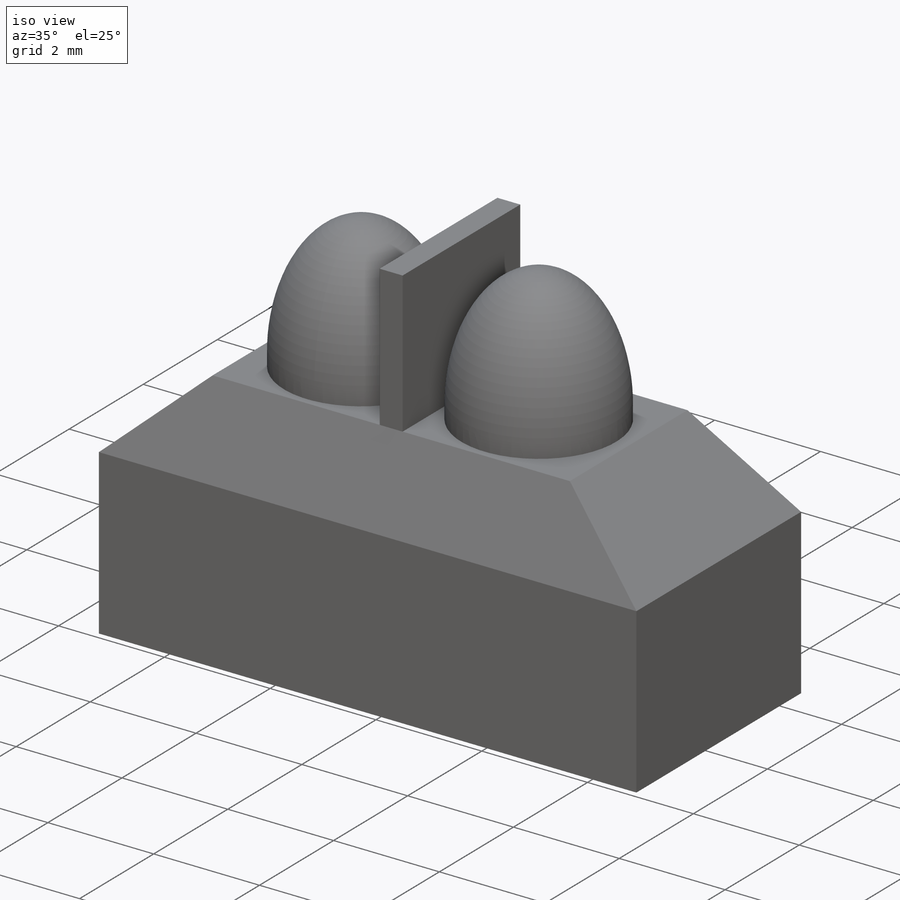
[diagram: iso view]
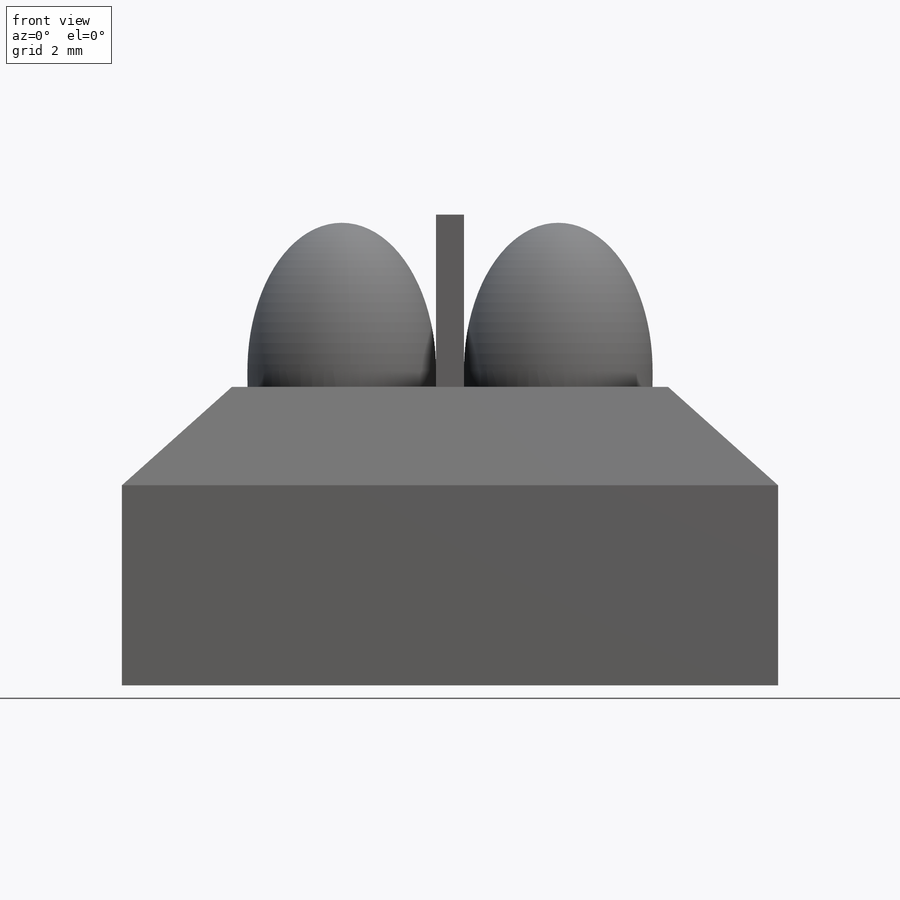
[diagram: front view]
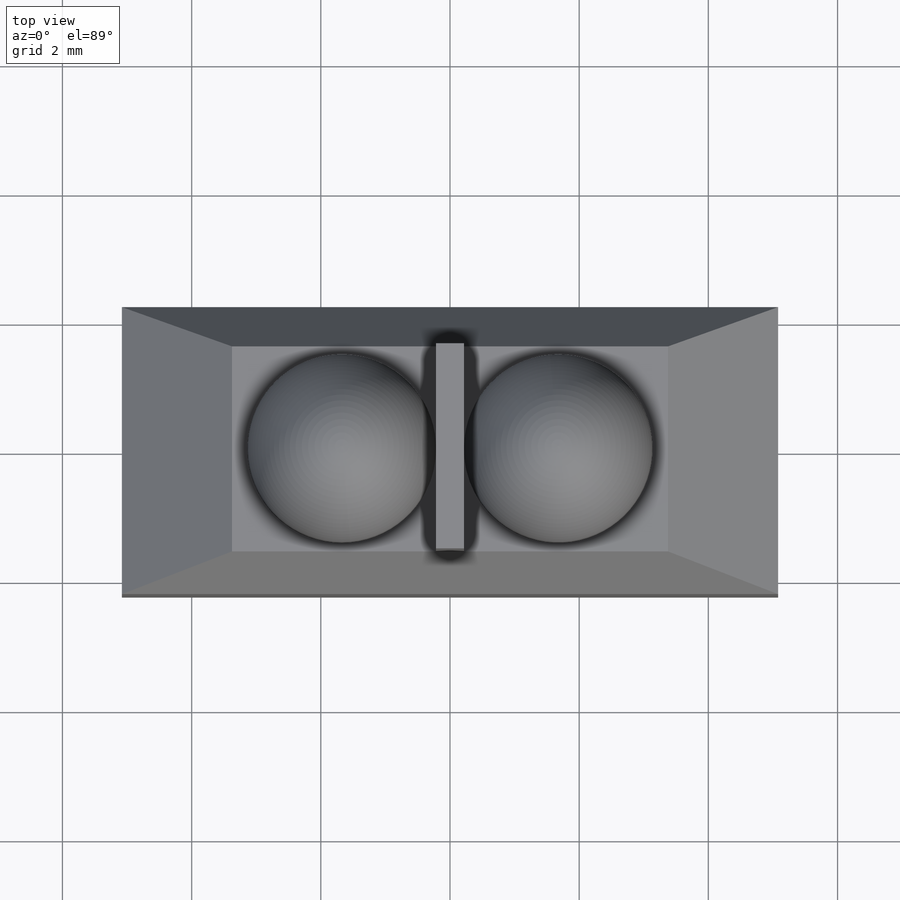
[diagram: top view]
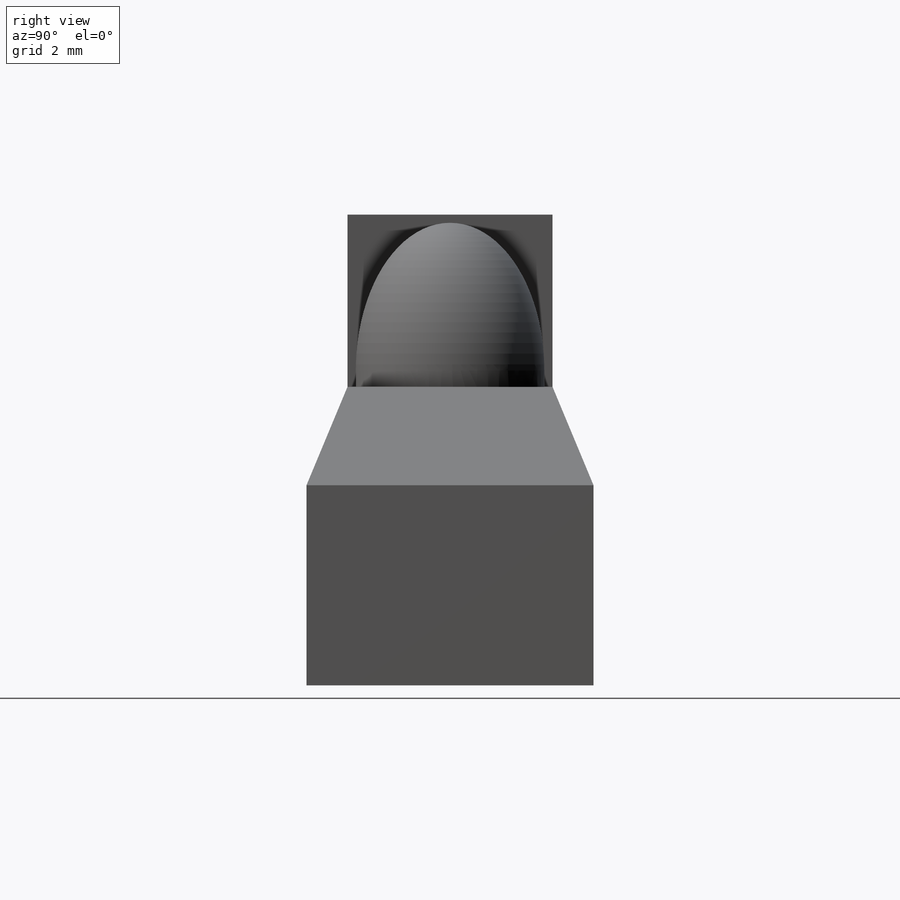
[diagram: right view]
SOLIDWORKS PART (.sldprt)
format: sldprt  version: not decoded by parser v0  size: 325,120 bytes
history: native  units: mm
features: sketch x6, extrude x4, cut_extrude x2, dome x2, material x1, plane x1 (+11 scaffold rows collapsed)
feature tree (27):
  scaffold x11  (default folders/planes/origin — collapsed)
  material  "Material <not specified>"
  sketch  "Sketch1"  dims[D1=10.16mm D2=4.445mm]
  extrude  "Boss-Extrude1"  Depth=3.0988mm
  sketch  "Sketch3"  dims[c1.D1=7.112mm c1.D2=2.8956mm c2.D1=4.445mm]
  plane  "Plane1"
  extrude  "Boss-Extrude3"  Depth=1.524mm
  sketch  "Sketch4"  dims[D1=2.286mm D2=~1.096694mm]
  cut_extrude  "Cut-Extrude1"  [1 undecoded]
  sketch  "Sketch8"  dims[c1.D1=1.524mm c1.D2=1.524mm c2.D1=~1.517173mm c2.D2=1.4478mm c2.D3=~1.517173mm c3.D2=1.4478mm c3.D1=1.651mm]
  cut_extrude  "Cut-Extrude3"  [1 undecoded]
  sketch  "Sketch9"  dims[D1=0.4318mm]
  extrude  "Boss-Extrude4"  Depth=2.667mm
  sketch  "Sketch10"  dims[c1.D1=2.921mm c1.D2=2.921mm c2.D1=~1.426394mm c2.D2=~1.426394mm]
  extrude  "Boss-Extrude6"  Depth=0.254mm
  dome  "Dome2"
  dome  "Dome3"
decode coverage: 10 of 14 modeling features carry decoded parameters
note: ~ marks probable driven/reference dimensions
note: 2 parameter values undecoded
note: suppression state not decoded; provenance and decode notes live in map.json
